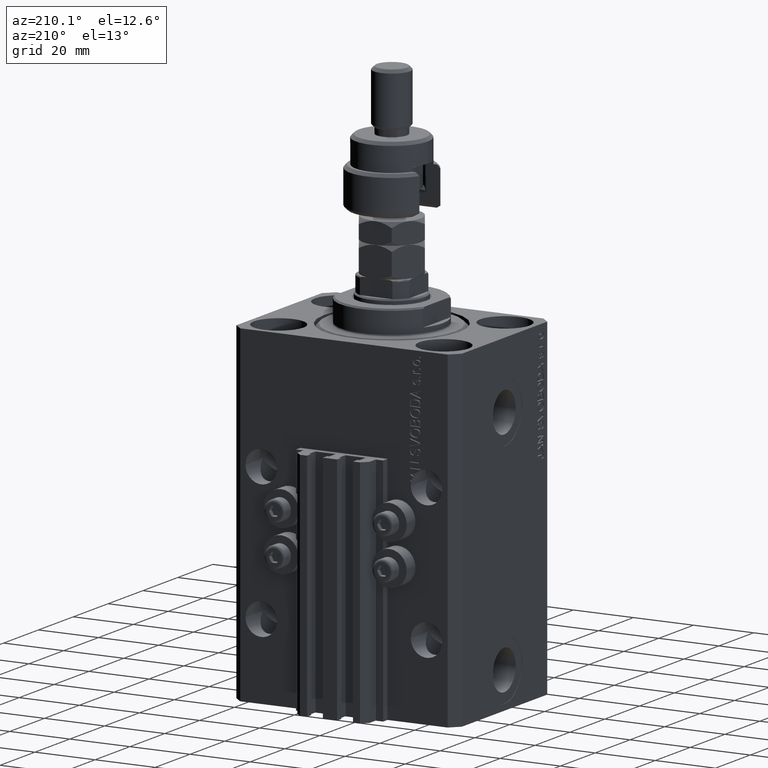
[diagram: clean part render]
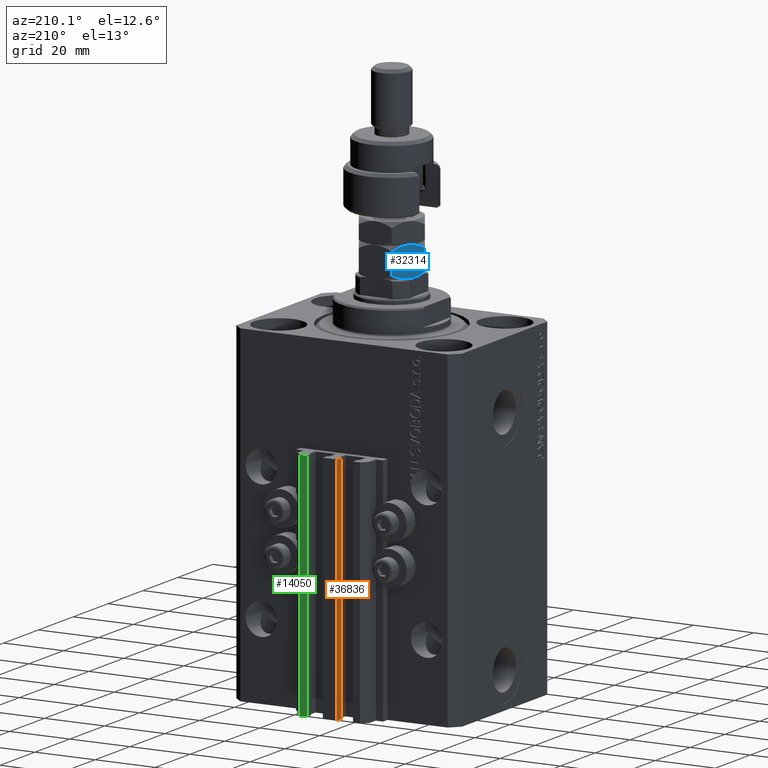
[diagram: same view with three faces highlighted in distinct colors, each labeled with its STEP entity id]
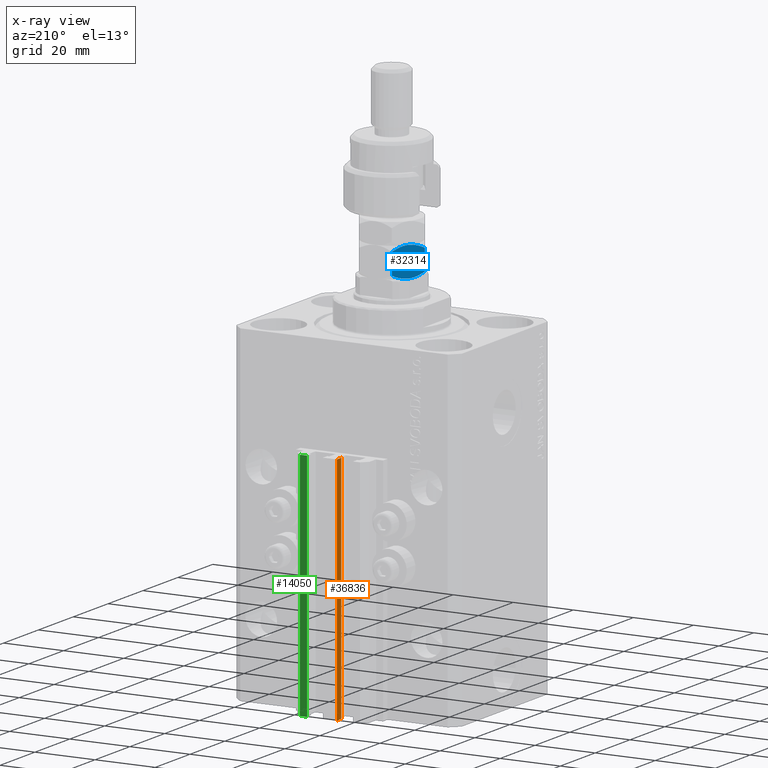
[diagram: x-ray of the same camera — body ghosted, the three highlighted faces saturated]
A machine part, auxiliary view with three faces highlighted in distinct colors.
The next image is the same camera in x-ray (body ghosted, the three faces saturated) — at least one of them is partly hidden behind the body in this view.
Their STEP definitions:

[orange] entity #36836 — the highlighted planar face has unit normal (-1, -0, 0).
#244 = CARTESIAN_POINT ( 'NONE',  ( -2.350000000000003642, 35.50000000000001421, -110.0000000000000000 ) ) ;
#329 = CARTESIAN_POINT ( 'NONE',  ( -2.350000000000003642, 35.50000000000001421, -33.00000000000000000 ) ) ;
#3383 = ORIENTED_EDGE ( 'NONE', *, *, #41182, .T. ) ;
#4207 = VECTOR ( 'NONE', #12184, 1000.000000000000000 ) ;
#5054 = ORIENTED_EDGE ( 'NONE', *, *, #36480, .F. ) ;
#5264 = DIRECTION ( 'NONE',  ( 0.000000000000000000, 0.000000000000000000, 1.000000000000000000 ) ) ;
#6350 = CARTESIAN_POINT ( 'NONE',  ( -2.350000000000003642, 35.50000000000001421, -33.00000000000000000 ) ) ;
#6963 = CARTESIAN_POINT ( 'NONE',  ( -2.350000000000003197, 33.10000000000000853, -110.0000000000000000 ) ) ;
#7321 = DIRECTION ( 'NONE',  ( -1.000000000000000000, -1.807003620809174632E-16, 0.000000000000000000 ) ) ;
#11146 = PLANE ( 'NONE',  #17679 ) ;
#11630 = VERTEX_POINT ( 'NONE', #6963 ) ;
#11691 = LINE ( 'NONE', #244, #4207 ) ;
#12184 = DIRECTION ( 'NONE',  ( 1.807003620809174632E-16, -1.000000000000000000, 0.000000000000000000 ) ) ;
#14598 = VECTOR ( 'NONE', #44492, 1000.000000000000000 ) ;
#15693 = VERTEX_POINT ( 'NONE', #23318 ) ;
#15768 = EDGE_CURVE ( 'NONE', #41466, #11630, #11691, .T. ) ;
#17645 = VECTOR ( 'NONE', #18017, 1000.000000000000000 ) ;
#17679 = AXIS2_PLACEMENT_3D ( 'NONE', #26595, #7321, #22783 ) ;
#18017 = DIRECTION ( 'NONE',  ( 1.807003620809174632E-16, -1.000000000000000000, 0.000000000000000000 ) ) ;
#18718 = ORIENTED_EDGE ( 'NONE', *, *, #15768, .T. ) ;
#19288 = CARTESIAN_POINT ( 'NONE',  ( -2.350000000000003642, 35.50000000000001421, -110.0000000000000000 ) ) ;
#22533 = FACE_OUTER_BOUND ( 'NONE', #37903, .T. ) ;
#22783 = DIRECTION ( 'NONE',  ( 1.807003620809174632E-16, -1.000000000000000000, 0.000000000000000000 ) ) ;
#22856 = ORIENTED_EDGE ( 'NONE', *, *, #32721, .F. ) ;
#23318 = CARTESIAN_POINT ( 'NONE',  ( -2.350000000000003197, 33.10000000000000853, -33.00000000000000000 ) ) ;
#26595 = CARTESIAN_POINT ( 'NONE',  ( -2.350000000000003642, 35.50000000000001421, -110.0000000000000000 ) ) ;
#27597 = LINE ( 'NONE', #32411, #38559 ) ;
#29026 = CARTESIAN_POINT ( 'NONE',  ( -2.350000000000003197, 33.10000000000000853, -110.0000000000000000 ) ) ;
#32411 = CARTESIAN_POINT ( 'NONE',  ( -2.350000000000003642, 35.50000000000001421, -110.0000000000000000 ) ) ;
#32721 = EDGE_CURVE ( 'NONE', #41466, #45916, #27597, .T. ) ;
#36480 = EDGE_CURVE ( 'NONE', #45916, #15693, #40610, .T. ) ;
#36836 = ADVANCED_FACE ( 'NONE', ( #22533 ), #11146, .T. ) ;
#37903 = EDGE_LOOP ( 'NONE', ( #5054, #22856, #18718, #3383 ) ) ;
#38559 = VECTOR ( 'NONE', #5264, 1000.000000000000000 ) ;
#40610 = LINE ( 'NONE', #6350, #17645 ) ;
#41182 = EDGE_CURVE ( 'NONE', #11630, #15693, #49048, .T. ) ;
#41466 = VERTEX_POINT ( 'NONE', #19288 ) ;
#44492 = DIRECTION ( 'NONE',  ( 0.000000000000000000, 0.000000000000000000, 1.000000000000000000 ) ) ;
#45916 = VERTEX_POINT ( 'NONE', #329 ) ;
#49048 = LINE ( 'NONE', #29026, #14598 ) ;

[blue] entity #32314 — the highlighted planar face has unit normal (0.866, -0.5, 0).
#525 = CARTESIAN_POINT ( 'NONE',  ( -9.500000000000000000, -5.484827557301445999, 10.00000000000000000 ) ) ;
#1705 = VERTEX_POINT ( 'NONE', #47682 ) ;
#2012 = CARTESIAN_POINT ( 'NONE',  ( -9.500000000000000000, 5.484827557301450440, 8.530344885397113330 ) ) ;
#2233 = LINE ( 'NONE', #13923, #49534 ) ;
#2667 = CARTESIAN_POINT ( 'NONE',  ( -9.499999999999996447, 0.000000000000000000, 10.00000000000000000 ) ) ;
#2928 = CARTESIAN_POINT ( 'NONE',  ( -9.499999999999998224, 4.619321229330174639, 8.944243860401860147 ) ) ;
#3002 = CARTESIAN_POINT ( 'NONE',  ( -9.500000000000000000, 0.000000000000000000, 0.000000000000000000 ) ) ;
#3638 = DIRECTION ( 'NONE',  ( -0.000000000000000000, 0.000000000000000000, -1.000000000000000000 ) ) ;
#4326 = LINE ( 'NONE', #525, #18116 ) ;
#5162 = EDGE_CURVE ( 'NONE', #20650, #31819, #18975, .T. ) ;
#5317 = CARTESIAN_POINT ( 'NONE',  ( -9.500000000000000000, 0.000000000000000000, 0.000000000000000000 ) ) ;
#5987 = CARTESIAN_POINT ( 'NONE',  ( -9.500000000000000000, -5.484827557301445999, 8.530344885397115107 ) ) ;
#6349 = ORIENTED_EDGE ( 'NONE', *, *, #40724, .F. ) ;
#6810 = CARTESIAN_POINT ( 'NONE',  ( -9.499999999999998224, 1.891038971533059110, 0.1751495044996551897 ) ) ;
#8633 = CARTESIAN_POINT ( 'NONE',  ( -9.500000000000000000, -5.484827557301445999, 1.469655114602884893 ) ) ;
#9239 = CARTESIAN_POINT ( 'NONE',  ( -9.500000000000000000, 5.484827557301450440, 8.530344885397113330 ) ) ;
#10682 = CARTESIAN_POINT ( 'NONE',  ( -9.499999999999996447, 0.000000000000000000, 10.00000000000000000 ) ) ;
#13619 = CARTESIAN_POINT ( 'NONE',  ( -9.500000000000003553, -3.751526451643773630, 9.324617500212356802 ) ) ;
#13923 = CARTESIAN_POINT ( 'NONE',  ( -9.500000000000000000, 5.484827557301449552, 10.00000000000000000 ) ) ;
#14320 = CARTESIAN_POINT ( 'NONE',  ( -9.500000000000000000, 5.484827557301449552, 10.00000000000000000 ) ) ;
#14977 = EDGE_LOOP ( 'NONE', ( #31575, #41579, #19422, #6349, #21505, #40064 ) ) ;
#15303 = EDGE_CURVE ( 'NONE', #19398, #1705, #45889, .T. ) ;
#15928 = CARTESIAN_POINT ( 'NONE',  ( -9.500000000000000000, -5.484827557301445999, 1.469655114602884893 ) ) ;
#16011 = DIRECTION ( 'NONE',  ( -0.000000000000000000, -0.000000000000000000, -1.000000000000000000 ) ) ;
#16743 = CARTESIAN_POINT ( 'NONE',  ( -9.500000000000001776, -1.900126426538963242, 0.1767061760391781533 ) ) ;
#18116 = VECTOR ( 'NONE', #16011, 1000.000000000000000 ) ;
#18135 = CARTESIAN_POINT ( 'NONE',  ( -9.500000000000001776, -4.631112555686342169, 8.957202386204667022 ) ) ;
#18975 = B_SPLINE_CURVE_WITH_KNOTS ( 'NONE', 3,
 ( #8633, #24086, #20282, #20536, #35754, #36003, #16743, #40069, #36258, #5317 ),
 .UNSPECIFIED., .F., .F.,
 ( 4, 2, 2, 2, 4 ),
 ( 0.01710995699817097551, 0.01854089553334493934, 0.01997183406851890664, 0.02140277260369287393, 0.02283371113886683776 ),
 .UNSPECIFIED. ) ;
#19398 = VERTEX_POINT ( 'NONE', #10682 ) ;
#19422 = ORIENTED_EDGE ( 'NONE', *, *, #15303, .F. ) ;
#19846 = B_SPLINE_CURVE_WITH_KNOTS ( 'NONE', 3,
 ( #3002, #49931, #23030, #6810, #42330, #22279, #46376, #31143 ),
 .UNSPECIFIED., .F., .F.,
 ( 4, 2, 2, 4 ),
 ( 0.02283371113886683776, 0.02427012866641926891, 0.02570654619397170007, 0.02857938124907656238 ),
 .UNSPECIFIED. ) ;
#19922 = EDGE_CURVE ( 'NONE', #1705, #20650, #4326, .T. ) ;
#20282 = CARTESIAN_POINT ( 'NONE',  ( -9.500000000000001776, -4.619321229330175527, 1.055756139598138077 ) ) ;
#20523 = CARTESIAN_POINT ( 'NONE',  ( -9.500000000000003553, 2.368438208135732914, 9.719066414435319601 ) ) ;
#20536 = CARTESIAN_POINT ( 'NONE',  ( -9.500000000000000000, -3.734178907538126868, 0.6995073985181277099 ) ) ;
#20650 = VERTEX_POINT ( 'NONE', #15928 ) ;
#21211 = CARTESIAN_POINT ( 'NONE',  ( -9.499999999999998224, -0.4747921536566078182, 9.999999999999998224 ) ) ;
#21505 = ORIENTED_EDGE ( 'NONE', *, *, #44344, .T. ) ;
#22279 = CARTESIAN_POINT ( 'NONE',  ( -9.500000000000001776, 3.751526451643775406, 0.6753824997876441971 ) ) ;
#22737 = B_SPLINE_CURVE_WITH_KNOTS ( 'NONE', 3,
 ( #2012, #35989, #2928, #26004, #47931, #20523, #24577, #49353, #47674, #28901 ),
 .UNSPECIFIED., .F., .F.,
 ( 4, 2, 2, 2, 4 ),
 ( 0.01710995699817097898, 0.01854089553334494628, 0.01997183406851891010, 0.02140277260369287740, 0.02283371113886684470 ),
 .UNSPECIFIED. ) ;
#22913 = PLANE ( 'NONE',  #39467 ) ;
#23030 = CARTESIAN_POINT ( 'NONE',  ( -9.500000000000000000, 0.9479236874768390830, 0.03577730758446397152 ) ) ;
#23967 = CARTESIAN_POINT ( 'NONE',  ( -9.500000000000000000, 5.484827557301450440, 1.469655114602887114 ) ) ;
#24086 = CARTESIAN_POINT ( 'NONE',  ( -9.499999999999998224, -5.056260213613243515, 1.255371442758782985 ) ) ;
#24577 = CARTESIAN_POINT ( 'NONE',  ( -9.500000000000001776, 1.900126426538962798, 9.823293823960822735 ) ) ;
#26004 = CARTESIAN_POINT ( 'NONE',  ( -9.499999999999994671, 3.734178907538126868, 9.300492601481865407 ) ) ;
#27586 = CARTESIAN_POINT ( 'NONE',  ( -9.500000000000000000, 0.000000000000000000, 0.000000000000000000 ) ) ;
#28901 = CARTESIAN_POINT ( 'NONE',  ( -9.499999999999996447, 0.000000000000000000, 10.00000000000000000 ) ) ;
#29378 = DIRECTION ( 'NONE',  ( -0.000000000000000000, -0.000000000000000000, -1.000000000000000000 ) ) ;
#29771 = DIRECTION ( 'NONE',  ( 1.000000000000000000, 0.000000000000000000, -0.000000000000000000 ) ) ;
#31143 = CARTESIAN_POINT ( 'NONE',  ( -9.500000000000000000, 5.484827557301450440, 1.469655114602887114 ) ) ;
#31575 = ORIENTED_EDGE ( 'NONE', *, *, #5162, .F. ) ;
#31724 = EDGE_CURVE ( 'NONE', #31819, #42598, #19846, .T. ) ;
#31819 = VERTEX_POINT ( 'NONE', #27586 ) ;
#32314 = ADVANCED_FACE ( 'NONE', ( #38137 ), #22913, .F. ) ;
#32875 = CARTESIAN_POINT ( 'NONE',  ( -9.500000000000000000, -1.891038971533061108, 9.824850495500340841 ) ) ;
#35116 = VERTEX_POINT ( 'NONE', #9239 ) ;
#35754 = CARTESIAN_POINT ( 'NONE',  ( -9.500000000000001776, -3.284755346118642727, 0.5422497451181170769 ) ) ;
#35989 = CARTESIAN_POINT ( 'NONE',  ( -9.499999999999998224, 5.056260213613249732, 8.744628557241215461 ) ) ;
#36003 = CARTESIAN_POINT ( 'NONE',  ( -9.500000000000001776, -2.368438208135733358, 0.2809335855646786784 ) ) ;
#36258 = CARTESIAN_POINT ( 'NONE',  ( -9.500000000000001776, -0.4729811324588428234, 5.421010862427519705E-17 ) ) ;
#38137 = FACE_OUTER_BOUND ( 'NONE', #14977, .T. ) ;
#39467 = AXIS2_PLACEMENT_3D ( 'NONE', #14320, #29771, #3638 ) ;
#40064 = ORIENTED_EDGE ( 'NONE', *, *, #31724, .F. ) ;
#40069 = CARTESIAN_POINT ( 'NONE',  ( -9.500000000000001776, -0.9476109094485490880, 0.03551930501265149198 ) ) ;
#40482 = CARTESIAN_POINT ( 'NONE',  ( -9.500000000000001776, -0.9479236874768413035, 9.964222692415534155 ) ) ;
#40724 = EDGE_CURVE ( 'NONE', #35116, #19398, #22737, .T. ) ;
#41579 = ORIENTED_EDGE ( 'NONE', *, *, #19922, .F. ) ;
#42330 = CARTESIAN_POINT ( 'NONE',  ( -9.500000000000001776, 2.364456443984731759, 0.2797887937521522095 ) ) ;
#42598 = VERTEX_POINT ( 'NONE', #23967 ) ;
#44344 = EDGE_CURVE ( 'NONE', #35116, #42598, #2233, .T. ) ;
#45889 = B_SPLINE_CURVE_WITH_KNOTS ( 'NONE', 3,
 ( #2667, #21211, #40482, #32875, #49092, #13619, #18135, #5987 ),
 .UNSPECIFIED., .F., .F.,
 ( 4, 2, 2, 4 ),
 ( 0.02283371113886684470, 0.02427012866641927585, 0.02570654619397170354, 0.02857938124907656238 ),
 .UNSPECIFIED. ) ;
#46376 = CARTESIAN_POINT ( 'NONE',  ( -9.500000000000000000, 4.631112555686345722, 1.042797613795336753 ) ) ;
#47674 = CARTESIAN_POINT ( 'NONE',  ( -9.500000000000003553, 0.4729811324588416022, 10.00000000000000178 ) ) ;
#47682 = CARTESIAN_POINT ( 'NONE',  ( -9.500000000000000000, -5.484827557301445999, 8.530344885397115107 ) ) ;
#47931 = CARTESIAN_POINT ( 'NONE',  ( -9.500000000000000000, 3.284755346118642727, 9.457750254881881702 ) ) ;
#49092 = CARTESIAN_POINT ( 'NONE',  ( -9.500000000000001776, -2.364456443984731315, 9.720211206247848068 ) ) ;
#49353 = CARTESIAN_POINT ( 'NONE',  ( -9.500000000000000000, 0.9476109094485472006, 9.964480694987347675 ) ) ;
#49534 = VECTOR ( 'NONE', #29378, 1000.000000000000000 ) ;
#49931 = CARTESIAN_POINT ( 'NONE',  ( -9.500000000000000000, 0.4747921536566064860, -5.336307567702092136E-17 ) ) ;

[green] entity #14050 — the highlighted planar face has unit normal (0, 1, 0).
#883 = LINE ( 'NONE', #15629, #20014 ) ;
#1288 = CARTESIAN_POINT ( 'NONE',  ( 9.999999999999998224, 35.50000000000001421, -33.00000000000000000 ) ) ;
#1511 = LINE ( 'NONE', #32710, #5060 ) ;
#5060 = VECTOR ( 'NONE', #12691, 1000.000000000000000 ) ;
#6078 = ORIENTED_EDGE ( 'NONE', *, *, #49780, .T. ) ;
#6661 = CARTESIAN_POINT ( 'NONE',  ( 7.649999999999998579, 35.50000000000001421, -110.0000000000000000 ) ) ;
#6791 = DIRECTION ( 'NONE',  ( 0.000000000000000000, 0.000000000000000000, 1.000000000000000000 ) ) ;
#7550 = VECTOR ( 'NONE', #41285, 1000.000000000000000 ) ;
#8869 = EDGE_LOOP ( 'NONE', ( #45497, #10377, #6078, #21050 ) ) ;
#10377 = ORIENTED_EDGE ( 'NONE', *, *, #18669, .F. ) ;
#10383 = PLANE ( 'NONE',  #45567 ) ;
#12691 = DIRECTION ( 'NONE',  ( -1.000000000000000000, 0.000000000000000000, 0.000000000000000000 ) ) ;
#13752 = VECTOR ( 'NONE', #25187, 1000.000000000000000 ) ;
#14050 = ADVANCED_FACE ( 'NONE', ( #34181 ), #10383, .T. ) ;
#15629 = CARTESIAN_POINT ( 'NONE',  ( 9.999999999999998224, 35.50000000000001421, -33.00000000000000000 ) ) ;
#17952 = CARTESIAN_POINT ( 'NONE',  ( 9.999999999999998224, 35.50000000000001421, -110.0000000000000000 ) ) ;
#18669 = EDGE_CURVE ( 'NONE', #48483, #25163, #45583, .T. ) ;
#20014 = VECTOR ( 'NONE', #42767, 1000.000000000000000 ) ;
#21050 = ORIENTED_EDGE ( 'NONE', *, *, #39521, .T. ) ;
#24624 = CARTESIAN_POINT ( 'NONE',  ( 7.649999999999998579, 35.50000000000001421, -33.00000000000000000 ) ) ;
#25163 = VERTEX_POINT ( 'NONE', #1288 ) ;
#25187 = DIRECTION ( 'NONE',  ( 0.000000000000000000, 0.000000000000000000, 1.000000000000000000 ) ) ;
#26065 = CARTESIAN_POINT ( 'NONE',  ( 9.999999999999998224, 35.50000000000001421, -110.0000000000000000 ) ) ;
#29631 = DIRECTION ( 'NONE',  ( 0.000000000000000000, 1.000000000000000000, -0.000000000000000000 ) ) ;
#32113 = EDGE_CURVE ( 'NONE', #25163, #36436, #883, .T. ) ;
#32710 = CARTESIAN_POINT ( 'NONE',  ( 9.999999999999998224, 35.50000000000001421, -110.0000000000000000 ) ) ;
#34181 = FACE_OUTER_BOUND ( 'NONE', #8869, .T. ) ;
#36436 = VERTEX_POINT ( 'NONE', #24624 ) ;
#39481 = CARTESIAN_POINT ( 'NONE',  ( 7.649999999999998579, 35.50000000000001421, -110.0000000000000000 ) ) ;
#39521 = EDGE_CURVE ( 'NONE', #49049, #36436, #41412, .T. ) ;
#41285 = DIRECTION ( 'NONE',  ( 0.000000000000000000, 0.000000000000000000, 1.000000000000000000 ) ) ;
#41412 = LINE ( 'NONE', #6661, #13752 ) ;
#42767 = DIRECTION ( 'NONE',  ( -1.000000000000000000, 0.000000000000000000, 0.000000000000000000 ) ) ;
#43174 = CARTESIAN_POINT ( 'NONE',  ( 9.999999999999998224, 35.50000000000001421, -110.0000000000000000 ) ) ;
#45497 = ORIENTED_EDGE ( 'NONE', *, *, #32113, .F. ) ;
#45567 = AXIS2_PLACEMENT_3D ( 'NONE', #26065, #29631, #6791 ) ;
#45583 = LINE ( 'NONE', #17952, #7550 ) ;
#48483 = VERTEX_POINT ( 'NONE', #43174 ) ;
#49049 = VERTEX_POINT ( 'NONE', #39481 ) ;
#49780 = EDGE_CURVE ( 'NONE', #48483, #49049, #1511, .T. ) ;